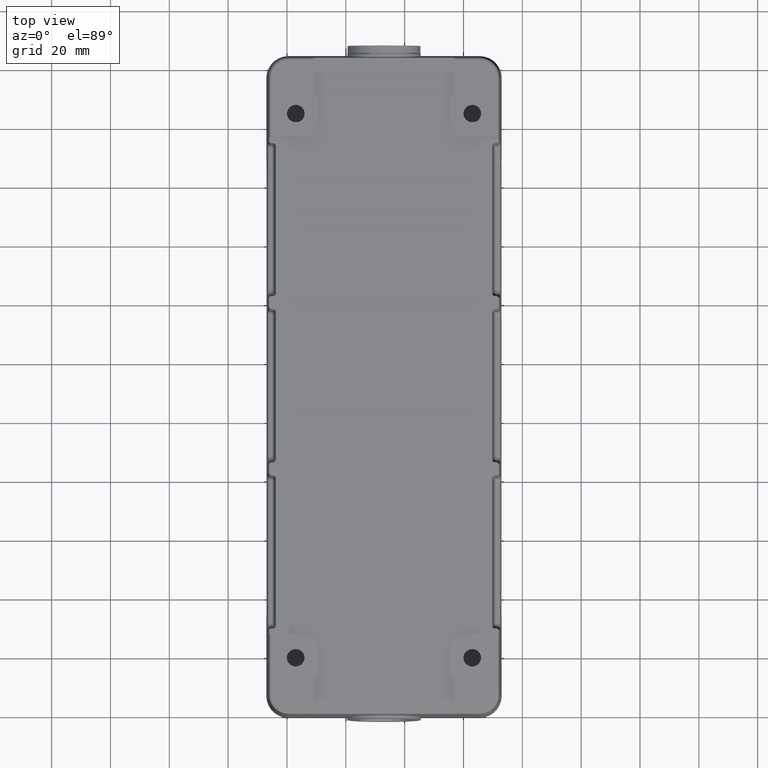
[diagram: clean part render]
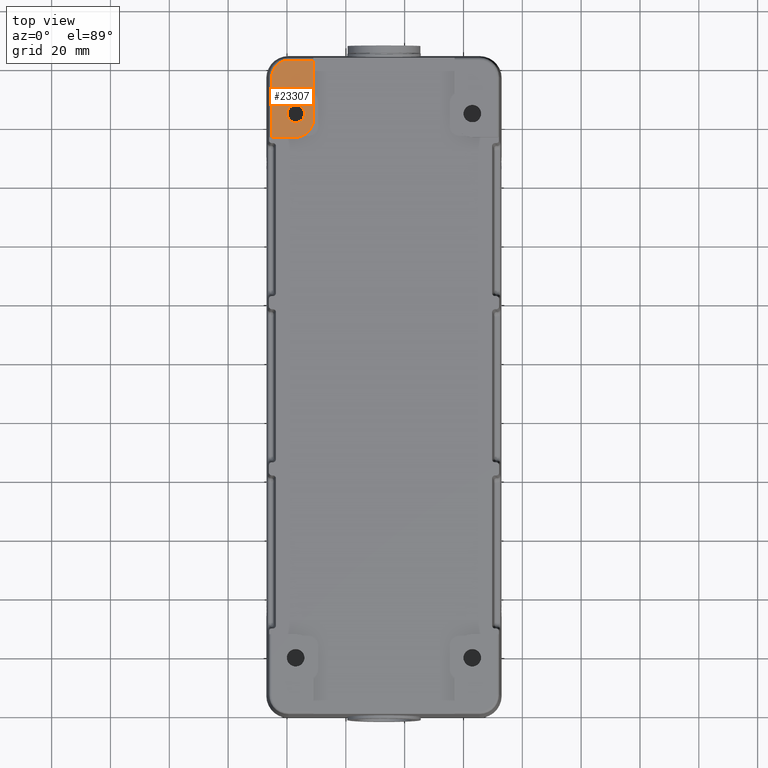
[diagram: same view with one face highlighted and labeled with its STEP entity id]
A machine part, top view. The second image highlights one B-rep face of the part: STEP entity #23307.
In plain terms, the highlighted planar face has unit normal (0, 0, 1).
Its self-contained STEP definition (entity closure, byte-faithful):
#16960=CARTESIAN_POINT('',(5.986153024442180,124.391932193606910,25.500000000000004));
#16961=VERTEX_POINT('',#16960);
#16962=CARTESIAN_POINT('',(2.986153024442180,124.391932193606910,25.500000000000004));
#16963=DIRECTION('',(0.0,0.0,-1.0));
#16964=DIRECTION('',(-1.0,0.0,0.0));
#16965=AXIS2_PLACEMENT_3D('',#16962,#16963,#16964);
#16966=CIRCLE('',#16965,3.000000000000000);
#16967=EDGE_CURVE('',#16961,#16961,#16966,.T.);
#22068=CARTESIAN_POINT('',(-5.157678578711167,116.391932193606710,25.500000000000004));
#22069=VERTEX_POINT('',#22068);
#22077=CARTESIAN_POINT('',(-5.157678578711167,136.891932193606690,25.500000000000004));
#22078=VERTEX_POINT('',#22077);
#22079=CARTESIAN_POINT('',(-5.157678578711167,116.391932193606710,25.500000000000004));
#22080=DIRECTION('',(0.0,1.0,0.0));
#22081=VECTOR('',#22080,20.499999999999986);
#22082=LINE('',#22079,#22081);
#22083=EDGE_CURVE('',#22069,#22078,#22082,.T.);
#22109=CARTESIAN_POINT('',(0.486153024442177,142.535763796760020,25.500000000000004));
#22110=VERTEX_POINT('',#22109);
#22126=CARTESIAN_POINT('',(0.486153024442192,136.891932193606690,25.500000000000004));
#22127=DIRECTION('',(0.0,0.0,-1.0));
#22128=DIRECTION('',(-0.707106781186547,0.707106781186548,0.0));
#22129=AXIS2_PLACEMENT_3D('',#22126,#22127,#22128);
#22130=CIRCLE('',#22129,5.643831603153351);
#22131=EDGE_CURVE('',#22078,#22110,#22130,.T.);
#22144=CARTESIAN_POINT('',(8.986153024442103,142.535763796760020,25.500000000000004));
#22145=VERTEX_POINT('',#22144);
#22146=CARTESIAN_POINT('',(0.486153024442177,142.535763796760020,25.500000000000004));
#22147=DIRECTION('',(1.0,0.0,0.0));
#22148=VECTOR('',#22147,8.499999999999927);
#22149=LINE('',#22146,#22148);
#22150=EDGE_CURVE('',#22110,#22145,#22149,.T.);
#23096=CARTESIAN_POINT('',(2.986153024442121,116.391932193606710,25.500000000000004));
#23097=VERTEX_POINT('',#23096);
#23104=CARTESIAN_POINT('',(-5.157678578711167,116.391932193606710,25.500000000000004));
#23105=DIRECTION('',(1.0,0.0,0.0));
#23106=VECTOR('',#23105,8.143831603153288);
#23107=LINE('',#23104,#23106);
#23108=EDGE_CURVE('',#22069,#23097,#23107,.T.);
#23172=CARTESIAN_POINT('',(8.986153024442121,122.391932193606690,25.500000000000004));
#23173=VERTEX_POINT('',#23172);
#23174=CARTESIAN_POINT('',(8.986153024442121,122.391932193606690,25.500000000000004));
#23175=DIRECTION('',(0.0,1.0,0.0));
#23176=VECTOR('',#23175,20.143831603153330);
#23177=LINE('',#23174,#23176);
#23178=EDGE_CURVE('',#23173,#22145,#23177,.T.);
#23197=CARTESIAN_POINT('',(2.986153024442118,122.391932193606690,25.500000000000004));
#23198=DIRECTION('',(0.0,0.0,1.0));
#23199=DIRECTION('',(0.0,1.0,0.0));
#23200=AXIS2_PLACEMENT_3D('',#23197,#23198,#23199);
#23201=CIRCLE('',#23200,6.000000000000001);
#23202=EDGE_CURVE('',#23097,#23173,#23201,.T.);
#23291=CARTESIAN_POINT('',(32.986153024442196,31.891932193606678,25.500000000000004));
#23292=DIRECTION('',(0.0,0.0,1.0));
#23293=DIRECTION('',(1.0,0.0,0.0));
#23294=AXIS2_PLACEMENT_3D('',#23291,#23292,#23293);
#23295=PLANE('',#23294);
#23296=ORIENTED_EDGE('',*,*,#22083,.F.);
#23297=ORIENTED_EDGE('',*,*,#23108,.T.);
#23298=ORIENTED_EDGE('',*,*,#23202,.T.);
#23299=ORIENTED_EDGE('',*,*,#23178,.T.);
#23300=ORIENTED_EDGE('',*,*,#22150,.F.);
#23301=ORIENTED_EDGE('',*,*,#22131,.F.);
#23302=EDGE_LOOP('',(#23296,#23297,#23298,#23299,#23300,#23301));
#23303=FACE_OUTER_BOUND('',#23302,.T.);
#23304=ORIENTED_EDGE('',*,*,#16967,.T.);
#23305=EDGE_LOOP('',(#23304));
#23306=FACE_BOUND('',#23305,.T.);
#23307=ADVANCED_FACE('',(#23303,#23306),#23295,.T.);